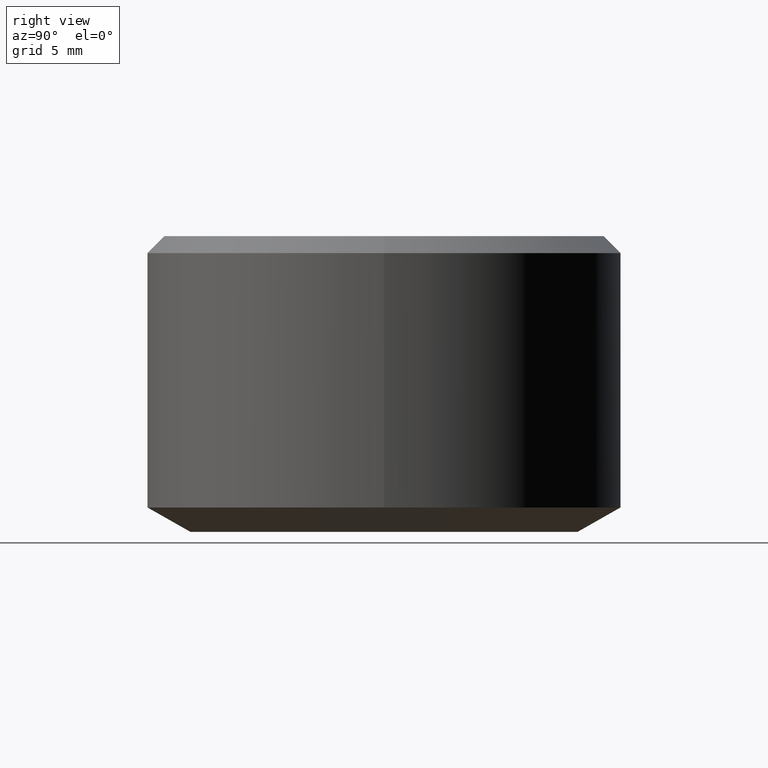
[diagram: clean part render]
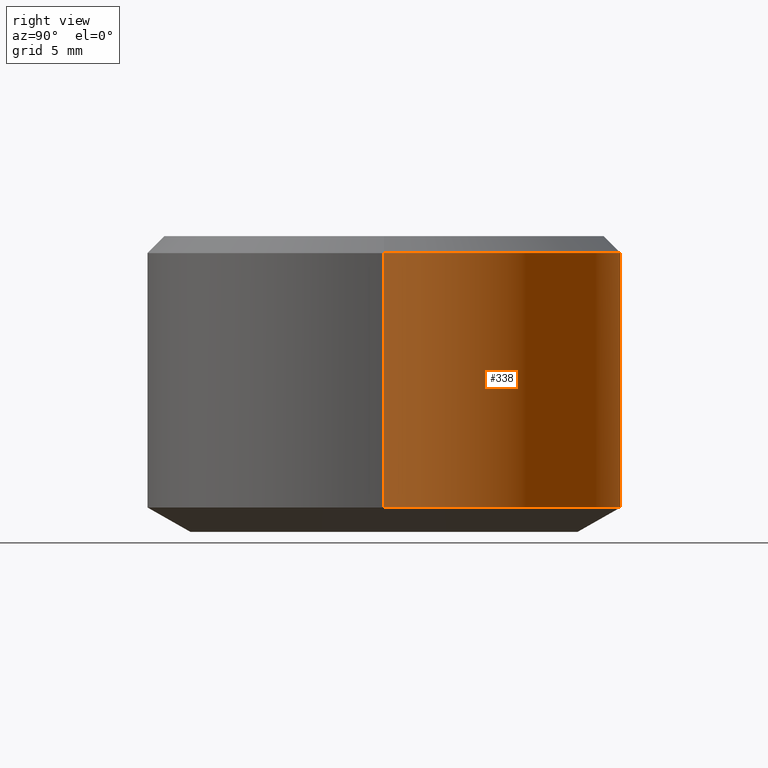
[diagram: same view with one face highlighted and labeled with its STEP entity id]
A machine part, right view. The second image highlights one B-rep face of the part: STEP entity #338.
In plain terms, the highlighted cylindrical surface (partial cylindrical patch) has radius 14 mm, axis along (-0, -0, -1).
Its self-contained STEP definition (entity closure, byte-faithful):
#5 = CIRCLE ( 'NONE', #317, 14.00000000000001200 ) ;
#17 = VECTOR ( 'NONE', #196, 1000.000000000000000 ) ;
#25 = CARTESIAN_POINT ( 'NONE',  ( -14.00000000000001200, -5.551115123125782700E-014, 16.50000000000018100 ) ) ;
#37 = ORIENTED_EDGE ( 'NONE', *, *, #142, .T. ) ;
#64 = AXIS2_PLACEMENT_3D ( 'NONE', #206, #183, #195 ) ;
#66 = LINE ( 'NONE', #135, #17 ) ;
#74 = ORIENTED_EDGE ( 'NONE', *, *, #107, .F. ) ;
#82 = AXIS2_PLACEMENT_3D ( 'NONE', #149, #158, #153 ) ;
#87 = CARTESIAN_POINT ( 'NONE',  ( 0.0000000000000000000, -5.551115123125782700E-014, 16.50000000000018100 ) ) ;
#92 = CARTESIAN_POINT ( 'NONE',  ( 14.00000000000001200, -5.379664571245152900E-014, 4.831493894172288300E-013 ) ) ;
#94 = CARTESIAN_POINT ( 'NONE',  ( -14.00000000000001200, -5.379664571245152900E-014, 1.443375672973923300 ) ) ;
#107 = EDGE_CURVE ( 'NONE', #134, #118, #66, .T. ) ;
#108 = LINE ( 'NONE', #92, #300 ) ;
#115 = DIRECTION ( 'NONE',  ( -1.000000000000000000, 0.0000000000000000000, 0.0000000000000000000 ) ) ;
#118 = VERTEX_POINT ( 'NONE', #94 ) ;
#134 = VERTEX_POINT ( 'NONE', #25 ) ;
#135 = CARTESIAN_POINT ( 'NONE',  ( -14.00000000000001200, -5.551115123125782700E-014, 4.831493894172288300E-013 ) ) ;
#142 = EDGE_CURVE ( 'NONE', #185, #324, #108, .T. ) ;
#149 = CARTESIAN_POINT ( 'NONE',  ( 0.0000000000000000000, -5.551115123125782700E-014, 4.831493894172288300E-013 ) ) ;
#153 = DIRECTION ( 'NONE',  ( -1.000000000000000000, 0.0000000000000000000, 0.0000000000000000000 ) ) ;
#158 = DIRECTION ( 'NONE',  ( -0.0000000000000000000, -0.0000000000000000000, -1.000000000000000000 ) ) ;
#167 = DIRECTION ( 'NONE',  ( -0.0000000000000000000, -0.0000000000000000000, -1.000000000000000000 ) ) ;
#180 = EDGE_LOOP ( 'NONE', ( #301, #37, #186, #74 ) ) ;
#183 = DIRECTION ( 'NONE',  ( -0.0000000000000000000, -0.0000000000000000000, -1.000000000000000000 ) ) ;
#185 = VERTEX_POINT ( 'NONE', #237 ) ;
#186 = ORIENTED_EDGE ( 'NONE', *, *, #198, .F. ) ;
#195 = DIRECTION ( 'NONE',  ( -1.000000000000000000, 0.0000000000000000000, 0.0000000000000000000 ) ) ;
#196 = DIRECTION ( 'NONE',  ( -0.0000000000000000000, -0.0000000000000000000, -1.000000000000000000 ) ) ;
#198 = EDGE_CURVE ( 'NONE', #118, #324, #241, .T. ) ;
#205 = CYLINDRICAL_SURFACE ( 'NONE', #82, 14.00000000000001200 ) ;
#206 = CARTESIAN_POINT ( 'NONE',  ( 0.0000000000000000000, -5.551115123125782700E-014, 1.443375672973923300 ) ) ;
#237 = CARTESIAN_POINT ( 'NONE',  ( 14.00000000000001200, -5.379664571245152900E-014, 16.50000000000018100 ) ) ;
#241 = CIRCLE ( 'NONE', #64, 14.00000000000001200 ) ;
#269 = FACE_OUTER_BOUND ( 'NONE', #180, .T. ) ;
#275 = EDGE_CURVE ( 'NONE', #134, #185, #5, .T. ) ;
#300 = VECTOR ( 'NONE', #320, 1000.000000000000000 ) ;
#301 = ORIENTED_EDGE ( 'NONE', *, *, #275, .T. ) ;
#317 = AXIS2_PLACEMENT_3D ( 'NONE', #87, #167, #115 ) ;
#320 = DIRECTION ( 'NONE',  ( -0.0000000000000000000, -0.0000000000000000000, -1.000000000000000000 ) ) ;
#323 = CARTESIAN_POINT ( 'NONE',  ( 14.00000000000001200, -5.551115123125782700E-014, 1.443375672973923300 ) ) ;
#324 = VERTEX_POINT ( 'NONE', #323 ) ;
#338 = ADVANCED_FACE ( 'NONE', ( #269 ), #205, .T. ) ;